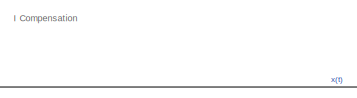
[diagram: root canvas - part 1/2, top center region]
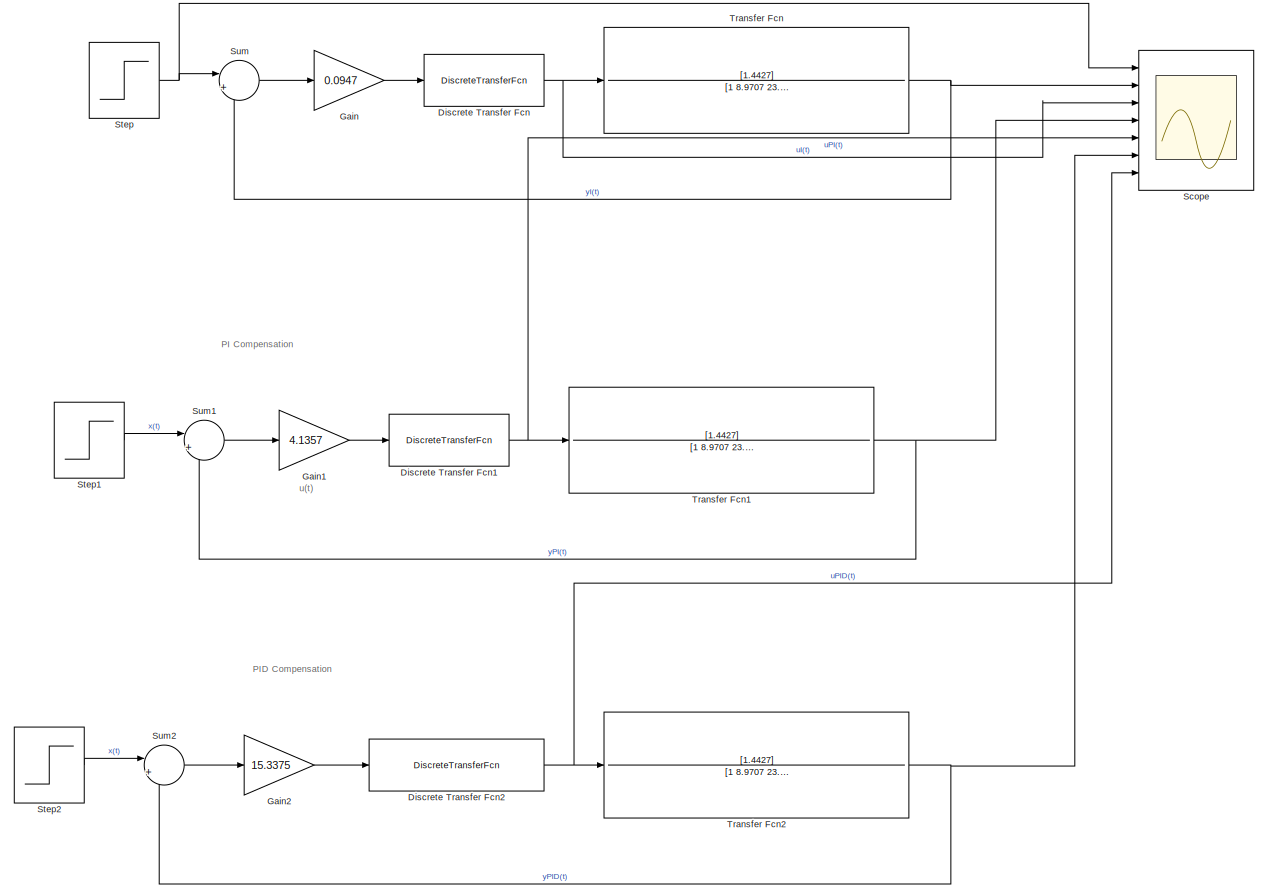
[diagram: root canvas - part 2/2, most of the canvas]
MODEL slx_adedb133632d
KIND model
CONFIG AbsTol = auto
CONFIG EnableMultiTasking = off
CONFIG FixedStep = auto
CONFIG MaxStep = auto
CONFIG MinStep = auto
CONFIG RelTol = 1e-3
CONFIG SampleTimeConstraint = Unconstrained
CONFIG SolverName = VariableStepAuto
CONFIG StartTime = 0.0
CONFIG StopTime = 80
BLOCK [DiscreteTransferFcn] Discrete Transfer Fcn
  Denominator = [1 -1]
  InputPortMap = u0
  Numerator = [1 0]
  Ports = [1, 1]
  SampleTime = 0.5
BLOCK [DiscreteTransferFcn] Discrete Transfer Fcn1
  Denominator = [1 -1]
  InputPortMap = u0
  Numerator = [1 -0.9223]
  Ports = [1, 1]
  SampleTime = 0.5
BLOCK [DiscreteTransferFcn] Discrete Transfer Fcn2
  Denominator = [1 -1 0]
  InputPortMap = u0
  Numerator = [1 -1.5168 0.5483]
  Ports = [1, 1]
  SampleTime = 0.5
BLOCK [Gain] Gain
  Gain = 0.0947
BLOCK [Gain] Gain1
  Gain = 4.1357
BLOCK [Gain] Gain2
  Gain = 15.3375
BLOCK [Scope] Scope
  Floating = off
  NumInputPorts = 7
  Ports = [7]
  ScopeSpecificationString = Simulink.scopes.TimeScopeBlockCfg('CurrentConfiguration', extmgr.ConfigurationSet(extmgr.Configuration('Core','General UI',true),extmgr.Configuration('Core','Source UI',true),extmgr.Configuration('Sources','WiredSimulink',true,'SampleTime','0.5'),extmgr.Configuration('Visuals','Time Domain',true,'SerializedDisplays',{struct('MinYLimReal','-1.91719','MaxYLimReal','17.25469','YLabelReal','','MinYLim...<+1593ch>
BLOCK [Step] Step
  SampleTime = 0
BLOCK [Step] Step1
  SampleTime = 0
BLOCK [Step] Step2
  SampleTime = 0
BLOCK [Sum] Sum
  Inputs = |+-
  Ports = [2, 1]
BLOCK [Sum] Sum1
  Inputs = |+-
  Ports = [2, 1]
BLOCK [Sum] Sum2
  Inputs = |+-
  Ports = [2, 1]
BLOCK [TransferFcn] Transfer Fcn
  Denominator = [1 8.9707 23.2351 17.8070 2.3091]
  Numerator = [1.4427]
BLOCK [TransferFcn] Transfer Fcn1
  Denominator = [1 8.9707 23.2351 17.8070 2.3091]
  Numerator = [1.4427]
BLOCK [TransferFcn] Transfer Fcn2
  Denominator = [1 8.9707 23.2351 17.8070 2.3091]
  Numerator = [1.4427]
ANNOTATION (root): I Compensation
ANNOTATION (root): PI Compensation
ANNOTATION (root): PID Compensation
ANNOTATION (root): u(t)
NET Discrete Transfer Fcn1:1 -> Scope:5, Transfer Fcn1:1
NET Discrete Transfer Fcn2:1 -> Scope:7, Transfer Fcn2:1
NET Discrete Transfer Fcn:1 -> Scope:3, Transfer Fcn:1
LINE Gain1:1 -> Discrete Transfer Fcn1:1
LINE Gain2:1 -> Discrete Transfer Fcn2:1
LINE Gain:1 -> Discrete Transfer Fcn:1
LINE Step1:1 -> Sum1:1
LINE Step2:1 -> Sum2:1
NET Step:1 -> Scope:1, Sum:1
LINE Sum1:1 -> Gain1:1
LINE Sum2:1 -> Gain2:1
LINE Sum:1 -> Gain:1
NET Transfer Fcn1:1 -> Scope:4, Sum1:2
NET Transfer Fcn2:1 -> Scope:6, Sum2:2
NET Transfer Fcn:1 -> Scope:2, Sum:2
note: NET lines group one-source signal fan-out (src -> all destinations, sorted); 1:1 wires keep LINE
